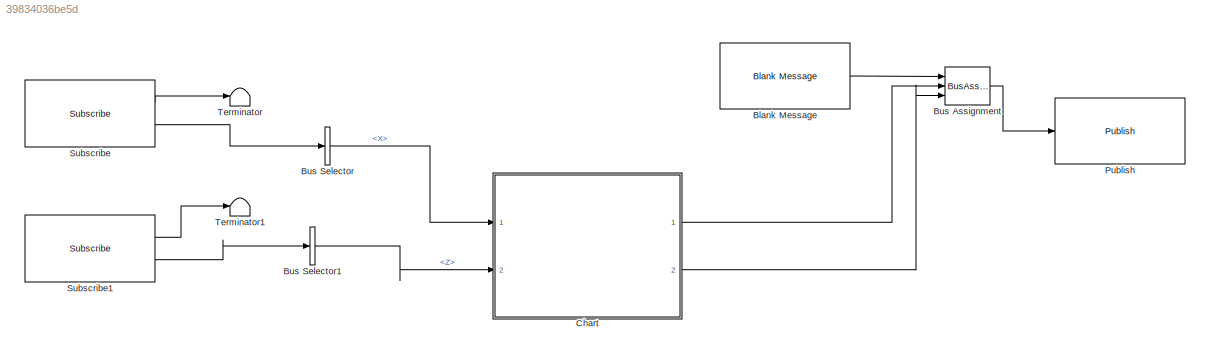
MODEL slx_39834036be5d
KIND model
CONFIG AbsTol = auto
CONFIG FixedStep = 0.02
CONFIG MaxStep = auto
CONFIG MinStep = auto
CONFIG RelTol = 1e-3
CONFIG SampleTimeConstraint = Unconstrained
CONFIG Solver = FixedStepAuto
CONFIG SolverMode = Auto
CONFIG SolverName = FixedStepAuto
CONFIG StartTime = 0.0
CONFIG StopTime = inf
BLOCK [Reference] Blank Message  REF=robotlib/Blank Message
  Ports = [0, 1]
  SourceBlock = robotlib/Blank Message
  SourceLibraryInfo = This block requires Robotics System Toolbox
  SourceType = ROS Blank Message
BLOCK [BusAssignment] Bus Assignment
  AssignedSignals = Linear.X,Angular.Z
  Ports = [3, 1]
BLOCK [BusSelector] Bus Selector
  OutputSignals = Linear.X
  Ports = [1, 1]
BLOCK [BusSelector] Bus Selector1
  OutputSignals = Torque.Z
  Ports = [1, 1]
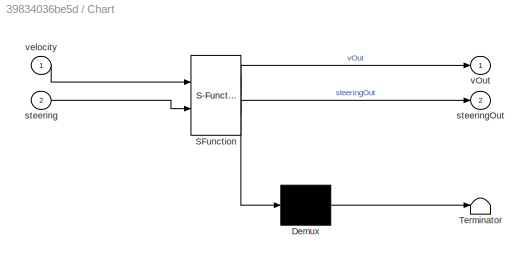
BLOCK [SubSystem] Chart
  ErrorFcn = Stateflow.Translate.translate
  PermitHierarchicalResolution = ExplicitOnly
  Ports = [2, 2]
  RequestExecContextInheritance = off
  SFBlockType = Chart
  TreatAsAtomicUnit = on
  Variant = off
BLOCK [Demux] Chart/ Demux 
  Outputs = 1
  Ports = [1, 1]
BLOCK [S-Function] Chart/ SFunction 
  EnableBusSupport = on
  FunctionName = sf_sfun
  PortCounts = [2 3]
  Ports = [2, 3]
  SFunctionDeploymentMode = off
  Tag = Stateflow S-Function simpleStateFlowModel 3
BLOCK [Terminator] Chart/ Terminator 
BLOCK [Inport] Chart/steering
  IconDisplay = Port number
  Port = 2
BLOCK [Outport] Chart/steeringOut
  IconDisplay = Port number
  Port = 2
BLOCK [Outport] Chart/vOut
  IconDisplay = Port number
BLOCK [Inport] Chart/velocity
  IconDisplay = Port number
BLOCK [Reference] Publish  REF=robotlib/Publish
  Ports = [1]
  SourceBlock = robotlib/Publish
  SourceLibraryInfo = This block requires Robotics System Toolbox
  SourceType = ROS Publish
BLOCK [Reference] Subscribe  REF=robotlib/Subscribe
  Ports = [0, 2]
  SourceBlock = robotlib/Subscribe
  SourceLibraryInfo = This block requires Robotics System Toolbox
  SourceType = ROS Subscribe
BLOCK [Reference] Subscribe1  REF=robotlib/Subscribe
  Ports = [0, 2]
  SourceBlock = robotlib/Subscribe
  SourceLibraryInfo = This block requires Robotics System Toolbox
  SourceType = ROS Subscribe
BLOCK [Terminator] Terminator
BLOCK [Terminator] Terminator1
LINE Blank Message:1 -> Bus Assignment:1
LINE Bus Assignment:1 -> Publish:1
LINE Bus Selector1:1 -> Chart:2
LINE Bus Selector:1 -> Chart:1
LINE Chart:1 -> Bus Assignment:2
LINE Chart:2 -> Bus Assignment:3
LINE Subscribe1:1 -> Terminator1:1
LINE Subscribe1:2 -> Bus Selector1:1
LINE Subscribe:1 -> Terminator:1
LINE Subscribe:2 -> Bus Selector:1
CHART Chart states=2 transitions=2
  STATE_LABEL 'Increasing\nentry:vOut=0;\nduring: vOut = vOut + 0.1; steeringOut = steering;'
  STATE_LABEL 'Stopping\nentry:\nduring: vOut = 0; steeringOut = steering;'
